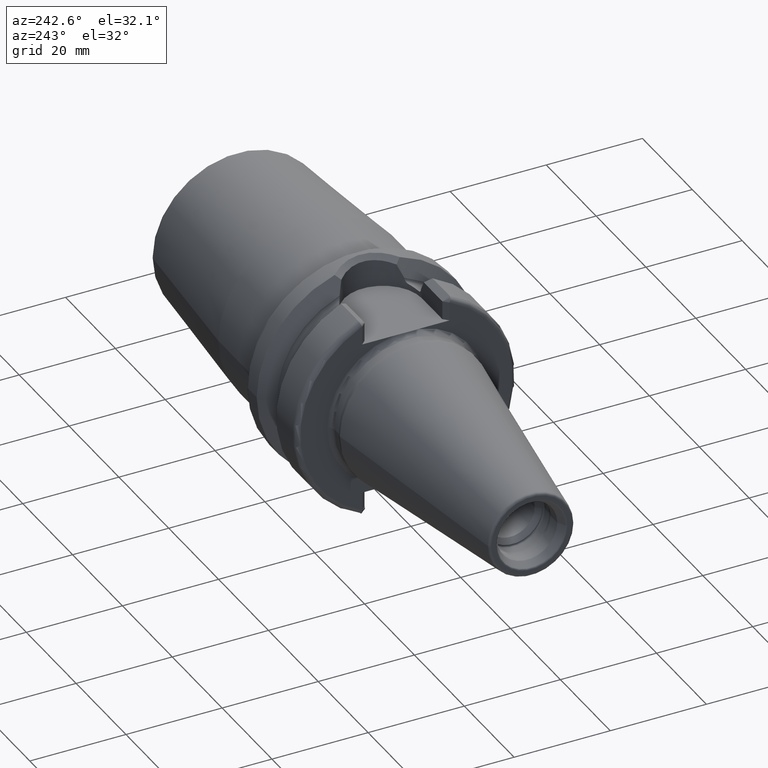
[diagram: clean part render]
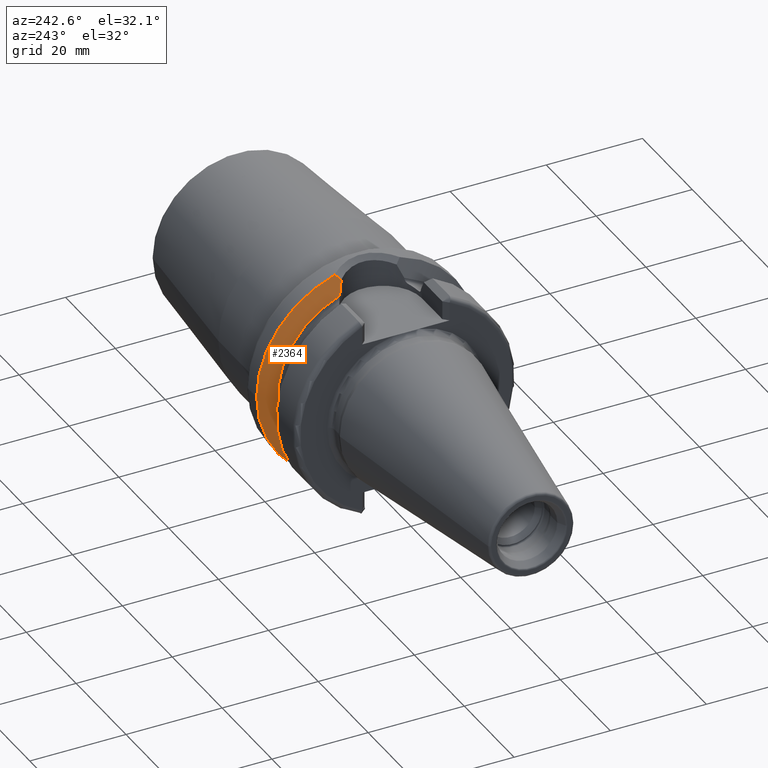
[diagram: same view with one face highlighted and labeled with its STEP entity id]
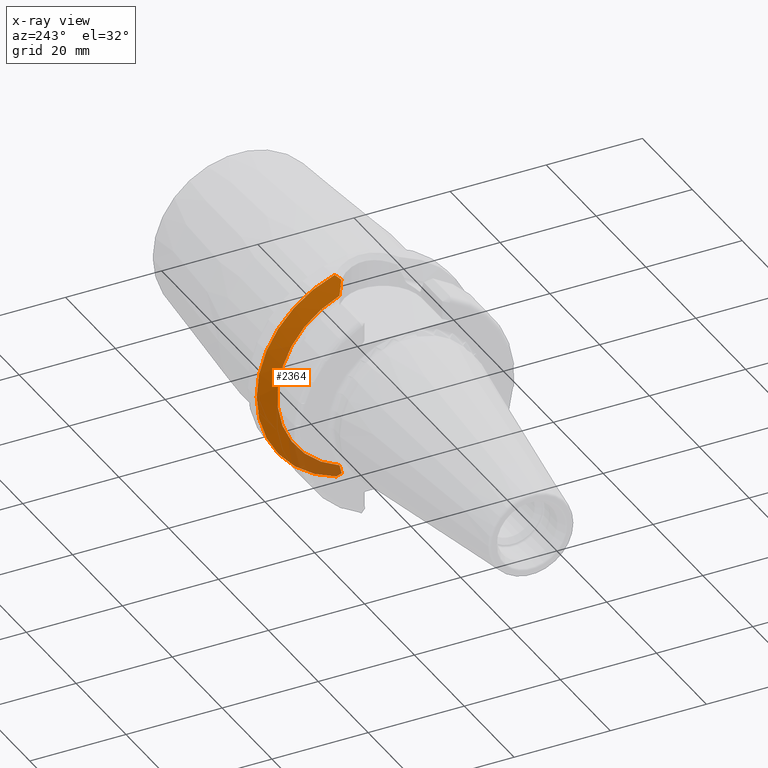
[diagram: x-ray of the same camera — body ghosted, the highlighted face saturated]
A machine part, auxiliary view. The second image highlights one B-rep face of the part: STEP entity #2364.
The next image is the same camera in x-ray: the body ghosted, the highlighted face saturated — about 16% of this face is hidden behind the body in this view.
In plain terms, the highlighted conical surface has half-angle 60 deg.
Its self-contained STEP definition (entity closure, byte-faithful):
#244=CARTESIAN_POINT('',(1.754907584126E1,0.E0,0.E0));
#245=DIRECTION('',(1.E0,0.E0,0.E0));
#246=DIRECTION('',(0.E0,2.802529554758E-1,-9.599261851554E-1));
#247=AXIS2_PLACEMENT_3D('',#244,#245,#246);
#321=CARTESIAN_POINT('',(1.56375E1,6.740639342822E0,-1.848861619239E1));
#322=CARTESIAN_POINT('',(1.580141693669E1,6.631635191826E0,-1.883055017756E1));
#323=CARTESIAN_POINT('',(1.612022880799E1,6.402379286160E0,-1.949407617939E1));
#324=CARTESIAN_POINT('',(1.657016835682E1,6.026547681230E0,-2.042714206942E1));
#325=CARTESIAN_POINT('',(1.685106915981E1,5.755169905209E0,-2.100794481881E1));
#326=CARTESIAN_POINT('',(1.698655422750E1,5.614445679829E0,-2.128775096196E1));
#519=CARTESIAN_POINT('',(1.685762423454E1,5.745354805374E0,2.102137764954E1));
#520=CARTESIAN_POINT('',(1.667158652396E1,5.930008876853E0,2.063686487213E1));
#521=CARTESIAN_POINT('',(1.628166811893E1,6.281182202369E0,1.982963416011E1));
#522=CARTESIAN_POINT('',(1.585764706705E1,6.594242365047E0,1.894784734616E1));
#523=CARTESIAN_POINT('',(1.56375E1,6.740639342822E0,1.848861619239E1));
#749=CARTESIAN_POINT('',(1.56375E1,0.E0,0.E0));
#750=DIRECTION('',(-1.E0,0.E0,0.E0));
#751=DIRECTION('',(0.E0,3.425286351209E-1,9.395073890727E-1));
#752=AXIS2_PLACEMENT_3D('',#749,#750,#751);
#766=CARTESIAN_POINT('',(1.698655422750E1,5.614445679829E0,-2.128775096196E1));
#767=CARTESIAN_POINT('',(1.704704785143E1,5.704776797294E0,-2.137228787957E1));
#768=CARTESIAN_POINT('',(1.716937480752E1,5.886585064290E0,-2.154284936475E1));
#769=CARTESIAN_POINT('',(1.735689240414E1,6.162776097467E0,-2.180317574240E1));
#770=CARTESIAN_POINT('',(1.748456978985E1,6.349213293706E0,-2.197969674892E1));
#771=CARTESIAN_POINT('',(1.754907584126E1,6.443015446388E0,-2.206870299672E1));
#773=CARTESIAN_POINT('',(1.754907584126E1,0.E0,0.E0));
#774=DIRECTION('',(1.E0,0.E0,0.E0));
#775=DIRECTION('',(0.E0,1.E0,0.E0));
#776=AXIS2_PLACEMENT_3D('',#773,#774,#775);
#936=CARTESIAN_POINT('',(1.754907584126E1,6.761871244710E0,2.197310167614E1));
#937=CARTESIAN_POINT('',(1.746924165528E1,6.646331333623E0,2.186398102541E1));
#938=CARTESIAN_POINT('',(1.731157385698E1,6.416997798511E0,2.164799004205E1));
#939=CARTESIAN_POINT('',(1.708106887013E1,6.078162644323E0,2.133072844085E1));
#940=CARTESIAN_POINT('',(1.693143417745E1,5.855724896324E0,2.112374379343E1));
#941=CARTESIAN_POINT('',(1.685762423454E1,5.745354805374E0,2.102137764954E1));
#1196=CARTESIAN_POINT('',(1.56375E1,6.740639342822E0,1.848861619239E1));
#1197=CARTESIAN_POINT('',(1.56375E1,6.740639342822E0,-1.848861619239E1));
#1198=VERTEX_POINT('',#1196);
#1199=VERTEX_POINT('',#1197);
#1212=CARTESIAN_POINT('',(1.754907584126E1,2.299E1,0.E0));
#1213=CARTESIAN_POINT('',(1.754907584126E1,6.761871244710E0,2.197310167614E1));
#1214=VERTEX_POINT('',#1212);
#1215=VERTEX_POINT('',#1213);
#1226=CARTESIAN_POINT('',(1.754907584126E1,6.443015446388E0,-2.206870299672E1));
#1227=VERTEX_POINT('',#1226);
#1315=VERTEX_POINT('',#519);
#1321=VERTEX_POINT('',#326);
#2347=CARTESIAN_POINT('',(1.659328792063E1,0.E0,0.E0));
#2348=DIRECTION('',(1.E0,0.E0,0.E0));
#2349=DIRECTION('',(0.E0,-1.E0,0.E0));
#2350=AXIS2_PLACEMENT_3D('',#2347,#2348,#2349);
#2351=CONICAL_SURFACE('',#2350,2.133452676021E1,6.E1);
#2352=ORIENTED_EDGE('',*,*,#1805,.T.);
#2353=ORIENTED_EDGE('',*,*,#1768,.T.);
#2355=ORIENTED_EDGE('',*,*,#2354,.T.);
#2356=ORIENTED_EDGE('',*,*,#1718,.T.);
#2358=ORIENTED_EDGE('',*,*,#2357,.T.);
#2360=ORIENTED_EDGE('',*,*,#2359,.T.);
#2361=ORIENTED_EDGE('',*,*,#1958,.T.);
#2362=EDGE_LOOP('',(#2352,#2353,#2355,#2356,#2358,#2360,#2361));
#2363=FACE_OUTER_BOUND('',#2362,.F.);
#2364=ADVANCED_FACE('',(#2363),#2351,.T.);
#248=CIRCLE('',#247,2.299E1);
#327=B_SPLINE_CURVE_WITH_KNOTS('',3,(#321,#322,#323,#324,#325,#326),
.UNSPECIFIED.,.F.,.F.,(4,1,1,4),(0.E0,3.333333333333E-1,6.666666666667E-1,1.E0),
.UNSPECIFIED.);
#524=B_SPLINE_CURVE_WITH_KNOTS('',3,(#519,#520,#521,#522,#523),.UNSPECIFIED.,
.F.,.F.,(4,1,4),(0.E0,5.E-1,1.E0),.UNSPECIFIED.);
#753=CIRCLE('',#752,1.967905352042E1);
#772=B_SPLINE_CURVE_WITH_KNOTS('',3,(#766,#767,#768,#769,#770,#771),
.UNSPECIFIED.,.F.,.F.,(4,1,1,4),(0.E0,3.333333333333E-1,6.666666666667E-1,1.E0),
.UNSPECIFIED.);
#777=CIRCLE('',#776,2.299E1);
#942=B_SPLINE_CURVE_WITH_KNOTS('',3,(#936,#937,#938,#939,#940,#941),
.UNSPECIFIED.,.F.,.F.,(4,1,1,4),(0.E0,3.333333333333E-1,6.666666666667E-1,1.E0),
.UNSPECIFIED.);
#1718=EDGE_CURVE('',#1227,#1214,#248,.T.);
#1768=EDGE_CURVE('',#1199,#1321,#327,.T.);
#1805=EDGE_CURVE('',#1198,#1199,#753,.T.);
#1958=EDGE_CURVE('',#1315,#1198,#524,.T.);
#2354=EDGE_CURVE('',#1321,#1227,#772,.T.);
#2357=EDGE_CURVE('',#1214,#1215,#777,.T.);
#2359=EDGE_CURVE('',#1215,#1315,#942,.T.);